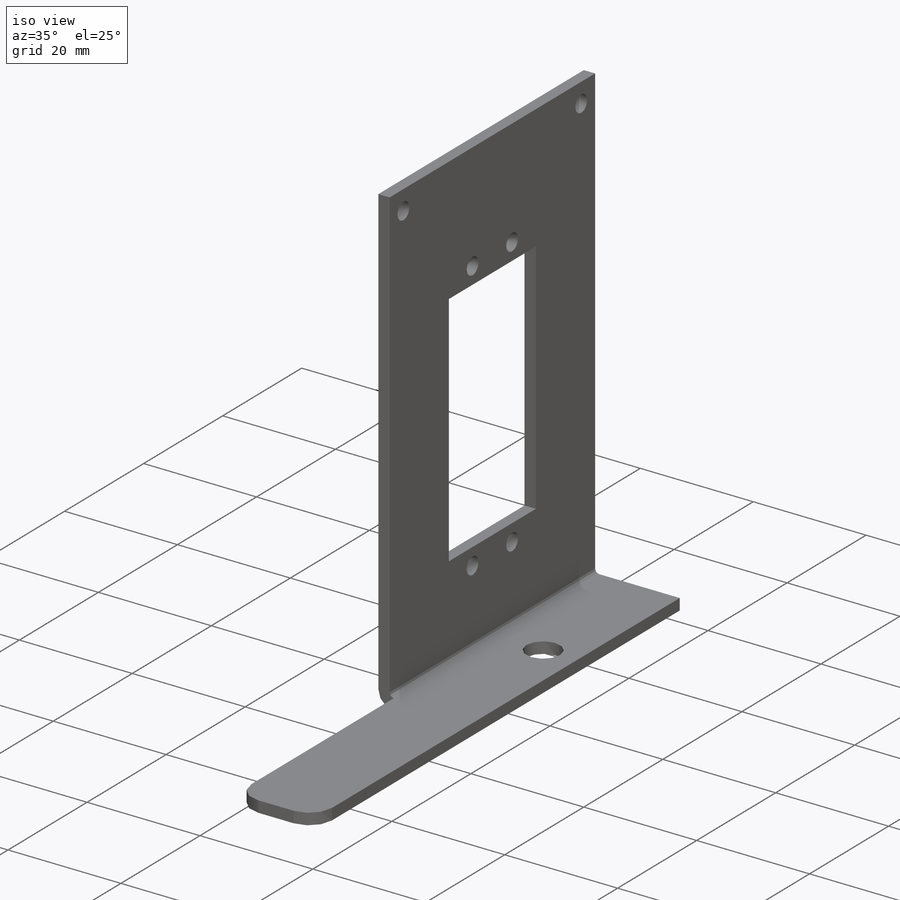
[diagram: iso view]
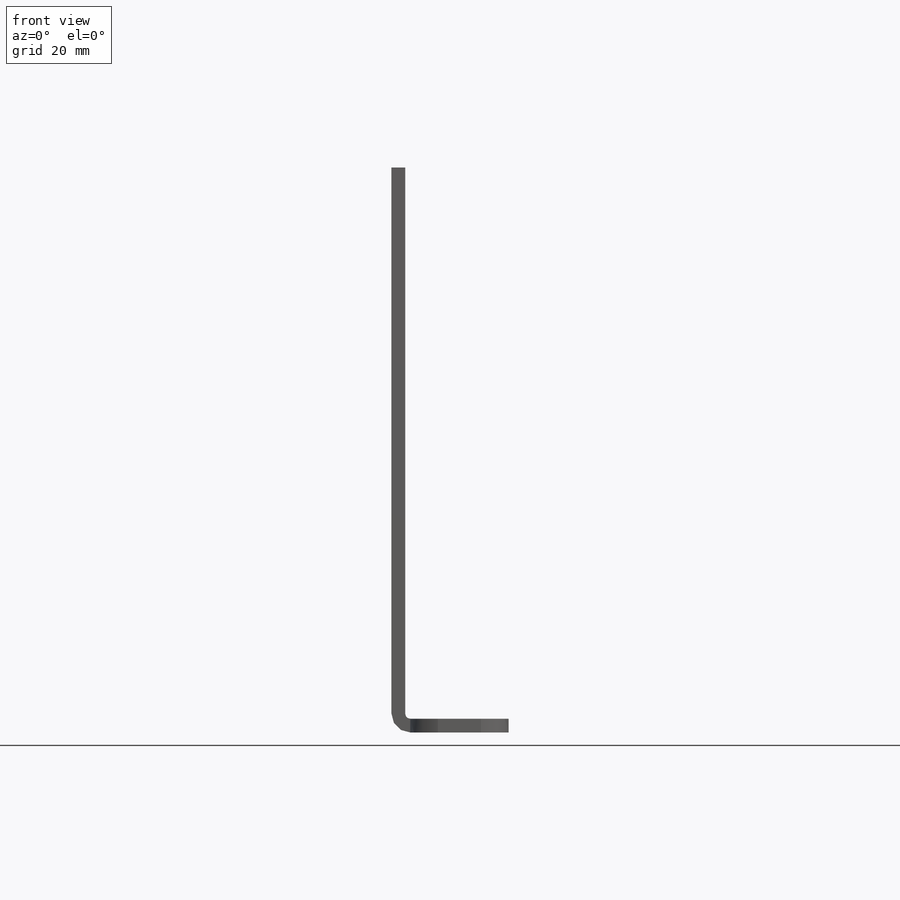
[diagram: front view]
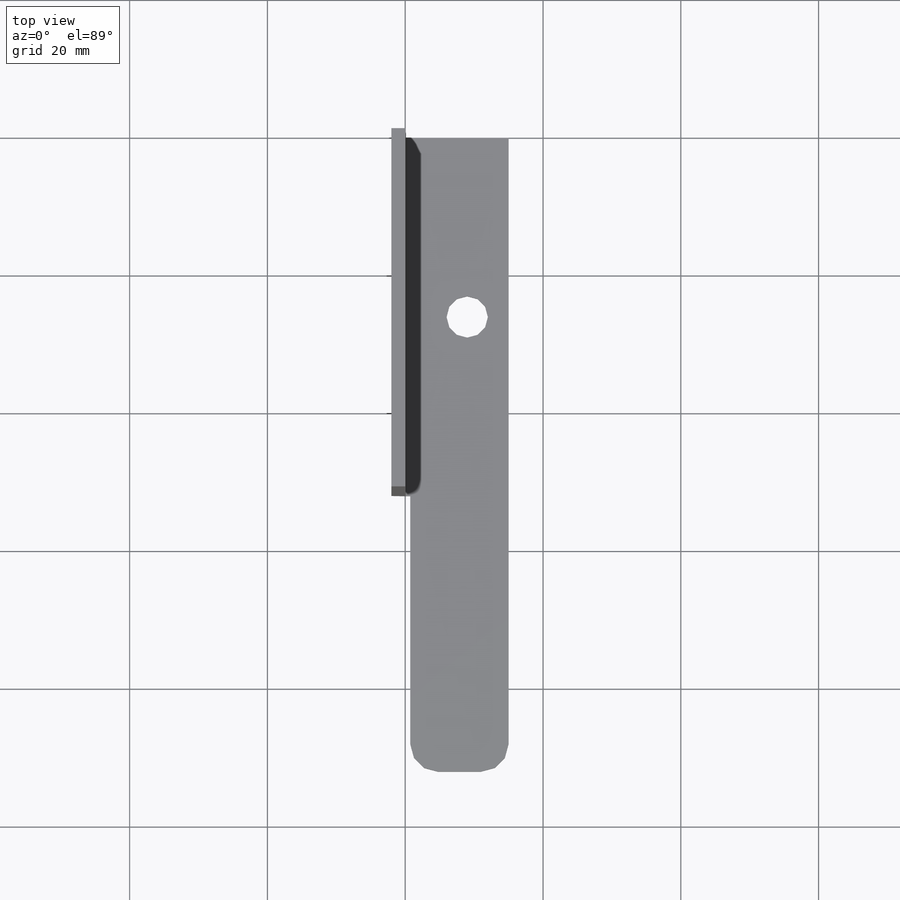
[diagram: top view]
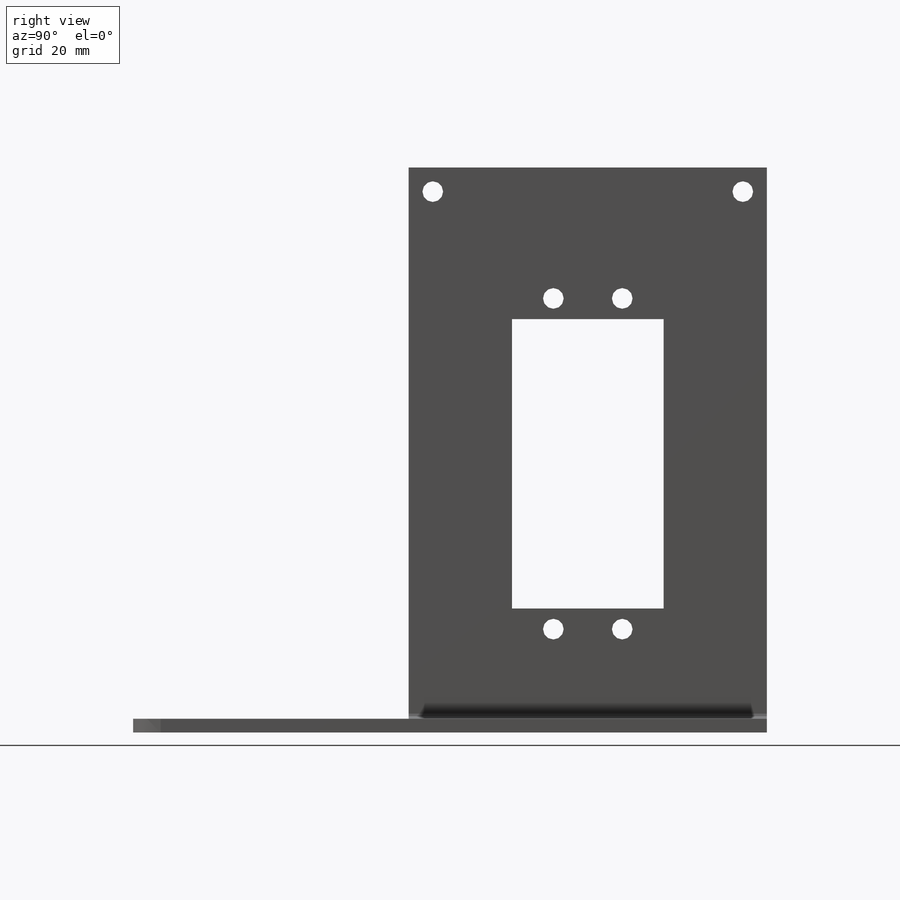
[diagram: right view]
SOLIDWORKS PART (.sldprt)
format: sldprt  version: not decoded by parser v0  size: 583,680 bytes
history: native  units: mm
features: sheet_metal_op x23, hole x5, plane x3, cut_extrude x2, material x1, sketch x1, extrude x1, fillet x1 + 10 further entries (+10 scaffold rows collapsed)
feature tree (57):
  scaffold x10  (default folders/planes/origin — collapsed)
  material  "材質 <未指定>"
  plane  "前基準面"
  plane  "上基準面"
  plane  "右基準面"
  sketch  "草圖1"  dims[c1.D1=15.0mm c1.D2=80.0mm c2.D1=0.7366mm c2.D2=0.5 c2.D3=0.0mm c2.D6=500.0mm]
  sheet_metal_op  "基材-凸緣1"
  sheet_metal_op  "草圖6"
  cut_extrude  "除料-伸長1"  [1 undecoded]
  hole  "M3 螺紋孔2"  [1 undecoded]
  sheet_metal_op  "草圖8"
  sheet_metal_op  "草圖7"  4=25.4mm 螺孔鑽直徑=2.5mm 螺孔鑽深度=7.5mm 螺紋主直徑=3mm 螺紋深度=6mm
  sheet_metal_op  "草圖9"
  cut_extrude  "除料-伸長2"  Depth=10mm
  sheet_metal_op  "草圖10"
  extrude  "填料-伸長4"  Depth=2mm
  fillet  "圓角1"  Radius=4mm
  sheet_metal_op  "彎折-線1"
  sheet_metal_op  "邊界方塊1"
  sheet_metal_op  "鈑金1"
  "平板-型式1"
  sheet_metal_op  "彎折-線2"
  sheet_metal_op  "邊界方塊2"
  "草圖變形1"
  hole  "鈑金2"  Diameter=0.7366mm
  sheet_metal_op  "平板-型式1"
  sheet_metal_op  "彎折-線2"
  sheet_metal_op  "邊界方塊2"
  "草圖變形1"
  "平板-<基材彎折1>1"
  hole  "鈑金3"  Diameter=0.7366mm
  sheet_metal_op  "平板-型式1"
  sheet_metal_op  "彎折-線2"
  sheet_metal_op  "邊界方塊2"
  "草圖變形1"
  "平板-<基材彎折1>1"
  hole  "鈑金4"  Diameter=0.7366mm
  sheet_metal_op  "平板-型式1"
  sheet_metal_op  "彎折-線2"
  sheet_metal_op  "邊界方塊2"
  "草圖變形1"
  "平板-<基材彎折1>1"
  hole  "鈑金5"  Diameter=0.7366mm
  sheet_metal_op  "平板-型式1"
  sheet_metal_op  "彎折-線2"
  sheet_metal_op  "邊界方塊2"
  "平板-<基材彎折1>1"
  "草圖變形1"
decode coverage: 9 of 33 modeling features carry decoded parameters; 10 rows unclassified (native names shown)
note: 2 parameter values undecoded
note: suppression state not decoded; provenance and decode notes live in map.json
